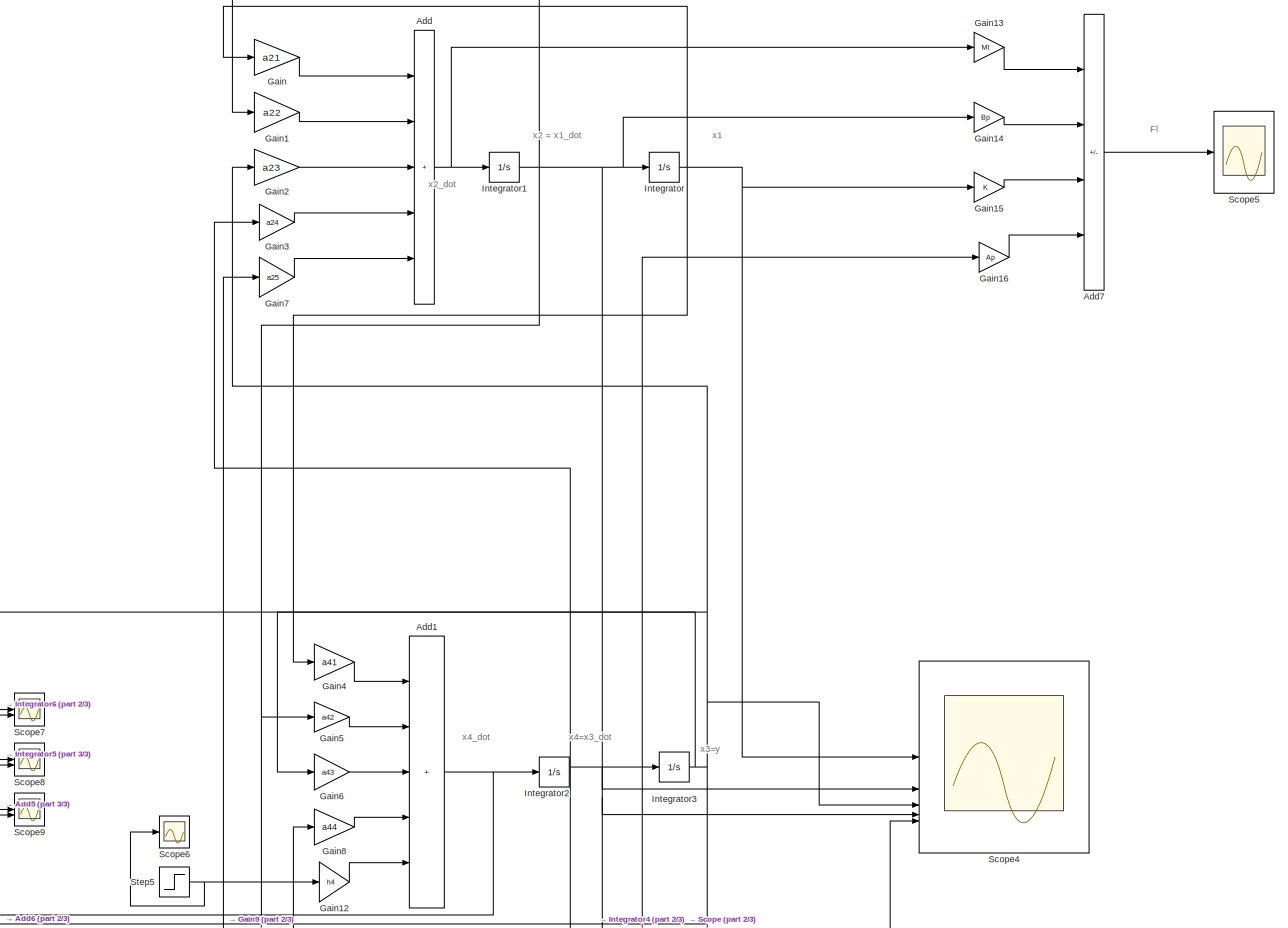
[diagram: root canvas - part 1/3, middle right region]
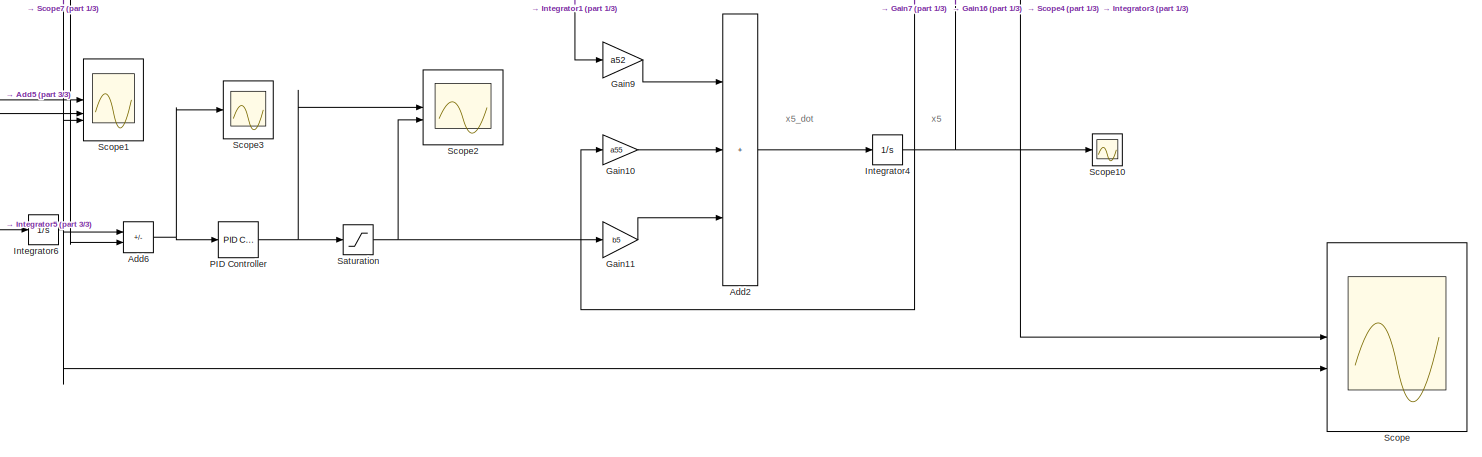
[diagram: root canvas - part 2/3, full width, bottom band]
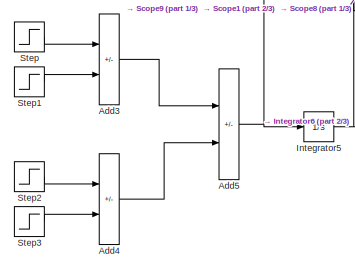
[diagram: root canvas - part 3/3, bottom left region]
MODEL slx_699e497626a1
KIND model
CONFIG AbsTol = auto
CONFIG EnableMultiTasking = off
CONFIG FixedStep = auto
CONFIG MaxStep = auto
CONFIG MinStep = auto
CONFIG RelTol = 1e-3
CONFIG SampleTimeConstraint = Unconstrained
CONFIG SolverName = VariableStepAuto
CONFIG StartTime = 0.0
CONFIG StopTime = 30
BLOCK [Sum] Add
  IconShape = rectangular
  Inputs = +++++
BLOCK [Sum] Add1
  IconShape = rectangular
  Inputs = +++++
BLOCK [Sum] Add2
  IconShape = rectangular
  Inputs = +++
BLOCK [Sum] Add3
  IconShape = rectangular
  Inputs = +-
BLOCK [Sum] Add4
  IconShape = rectangular
  Inputs = +-
BLOCK [Sum] Add5
  IconShape = rectangular
  Inputs = +-
BLOCK [Sum] Add6
  IconShape = rectangular
  Inputs = +-
BLOCK [Sum] Add7
  IconShape = rectangular
  Inputs = ---+
BLOCK [Gain] Gain
  Gain = a21
BLOCK [Gain] Gain1
  Gain = a22
BLOCK [Gain] Gain10
  Gain = a55
BLOCK [Gain] Gain11
  Gain = b5
BLOCK [Gain] Gain12
  Gain = h4
BLOCK [Gain] Gain13
  Gain = Mt
BLOCK [Gain] Gain14
  Gain = Bp
BLOCK [Gain] Gain15
  Gain = K
BLOCK [Gain] Gain16
  Gain = Ap
BLOCK [Gain] Gain2
  Gain = a23
BLOCK [Gain] Gain3
  Gain = a24
BLOCK [Gain] Gain4
  Gain = a41
BLOCK [Gain] Gain5
  Gain = a42
BLOCK [Gain] Gain6
  Gain = a43
BLOCK [Gain] Gain7
  Gain = a25
BLOCK [Gain] Gain8
  Gain = a44
BLOCK [Gain] Gain9
  Gain = a52
BLOCK [Integrator] Integrator
BLOCK [Integrator] Integrator1
BLOCK [Integrator] Integrator2
BLOCK [Integrator] Integrator3
BLOCK [Integrator] Integrator4
BLOCK [Integrator] Integrator5
BLOCK [Integrator] Integrator6
BLOCK [Reference] PID Controller  REF=slpidlib/PID Controller
  LibrarySourceBlock = simulink/Continuous/PID Controller
  SourceBlock = slpidlib/PID Controller
  SourceType = PID 1dof
BLOCK [Saturate] Saturation
  LowerLimit = -24
  UpperLimit = 24
BLOCK [Scope] Scope
  Floating = off
  NumInputPorts = 2
  ScopeSpecificationString = Simulink.scopes.TimeScopeBlockCfg('CurrentConfiguration', extmgr.ConfigurationSet(extmgr.Configuration('Core','General UI',true),extmgr.Configuration('Core','Source UI',true),extmgr.Configuration('Sources','WiredSimulink',true),extmgr.Configuration('Visuals','Time Domain',true,'SerializedDisplays',{struct('MinYLimReal','-0.32762','MaxYLimReal','2.94296','YLabelReal','','MinYLimMag','0.00000','MaxY...<+1567ch>
BLOCK [Scope] Scope1
  Floating = off
  NumInputPorts = 3
  ScopeSpecificationString = Simulink.scopes.TimeScopeBlockCfg('CurrentConfiguration', extmgr.ConfigurationSet(extmgr.Configuration('Core','General UI',true),extmgr.Configuration('Core','Source UI',true),extmgr.Configuration('Sources','WiredSimulink',true,'DataLoggingVariableName','ScopeData1'),extmgr.Configuration('Visuals','Time Domain',true,'SerializedDisplays',{struct('MinYLimReal','-1.96075','MaxYLimReal','1.96075','YLab...<+3020ch>
BLOCK [Scope] Scope10
  Floating = off
  NumInputPorts = 1
  ScopeSpecificationString = Simulink.scopes.TimeScopeBlockCfg('CurrentConfiguration', extmgr.ConfigurationSet(extmgr.Configuration('Core','General UI',true),extmgr.Configuration('Core','Source UI',true),extmgr.Configuration('Sources','WiredSimulink',true,'DataLoggingVariableName','ScopeData6'),extmgr.Configuration('Visuals','Time Domain',true,'SerializedDisplays',{struct('MinYLimReal','-794911.62491','MaxYLimReal','1336433.2...<+1530ch>
BLOCK [Scope] Scope2
  Floating = off
  NumInputPorts = 2
  ScopeSpecificationString = Simulink.scopes.TimeScopeBlockCfg('CurrentConfiguration', extmgr.ConfigurationSet(extmgr.Configuration('Core','General UI',true),extmgr.Configuration('Core','Source UI',true),extmgr.Configuration('Sources','WiredSimulink',true,'DataLoggingVariableName','ScopeData2'),extmgr.Configuration('Visuals','Time Domain',true,'SerializedDisplays',{struct('MinYLimReal','-0.45185','MaxYLimReal','1.54811','YLab...<+1637ch>
BLOCK [Scope] Scope3
  Floating = off
  NumInputPorts = 1
  ScopeSpecificationString = Simulink.scopes.TimeScopeBlockCfg('CurrentConfiguration', extmgr.ConfigurationSet(extmgr.Configuration('Core','General UI',true),extmgr.Configuration('Core','Source UI',true),extmgr.Configuration('Sources','WiredSimulink',true,'DataLoggingVariableName','ScopeData1'),extmgr.Configuration('Visuals','Time Domain',true,'SerializedDisplays',{struct('MinYLimReal','-0.25055','MaxYLimReal','0.30623','YLab...<+1481ch>
BLOCK [Scope] Scope4
  Floating = off
  NumInputPorts = 5
  ScopeSpecificationString = Simulink.scopes.TimeScopeBlockCfg('CurrentConfiguration', extmgr.ConfigurationSet(extmgr.Configuration('Core','General UI',true),extmgr.Configuration('Core','Source UI',true),extmgr.Configuration('Sources','WiredSimulink',true,'DataLoggingVariableName','ScopeData2'),extmgr.Configuration('Visuals','Time Domain',true,'SerializedDisplays',{struct('MinYLimReal','-0.23874','MaxYLimReal','2.14806','YLab...<+5526ch>
BLOCK [Scope] Scope5
  Floating = off
  NumInputPorts = 1
  ScopeSpecificationString = Simulink.scopes.TimeScopeBlockCfg('CurrentConfiguration', extmgr.ConfigurationSet(extmgr.Configuration('Core','General UI',true),extmgr.Configuration('Core','Source UI',true),extmgr.Configuration('Sources','WiredSimulink',true,'DataLoggingVariableName','ScopeData1'),extmgr.Configuration('Visuals','Time Domain',true,'SerializedDisplays',{struct('MinYLimReal','3335.55517','MaxYLimReal','3335.71394',...<+1548ch>
BLOCK [Scope] Scope6
  Floating = off
  NumInputPorts = 1
  ScopeSpecificationString = Simulink.scopes.TimeScopeBlockCfg('CurrentConfiguration', extmgr.ConfigurationSet(extmgr.Configuration('Core','General UI',true),extmgr.Configuration('Core','Source UI',true),extmgr.Configuration('Sources','WiredSimulink',true,'DataLoggingVariableName','ScopeData2'),extmgr.Configuration('Visuals','Time Domain',true,'SerializedDisplays',{struct('MinYLimReal','-62.5','MaxYLimReal','562.5','YLabelRea...<+1458ch>
BLOCK [Scope] Scope7
  Floating = off
  NumInputPorts = 2
  ScopeSpecificationString = Simulink.scopes.TimeScopeBlockCfg('CurrentConfiguration', extmgr.ConfigurationSet(extmgr.Configuration('Core','General UI',true),extmgr.Configuration('Core','Source UI',true),extmgr.Configuration('Sources','WiredSimulink',true,'DataLoggingVariableName','ScopeData3'),extmgr.Configuration('Visuals','Time Domain',true,'SerializedDisplays',{struct('MinYLimReal','-0.23928','MaxYLimReal','2.14791','YLab...<+1502ch>
BLOCK [Scope] Scope8
  Floating = off
  NumInputPorts = 2
  ScopeSpecificationString = Simulink.scopes.TimeScopeBlockCfg('CurrentConfiguration', extmgr.ConfigurationSet(extmgr.Configuration('Core','General UI',true),extmgr.Configuration('Core','Source UI',true),extmgr.Configuration('Sources','WiredSimulink',true,'DataLoggingVariableName','ScopeData4'),extmgr.Configuration('Visuals','Time Domain',true,'SerializedDisplays',{struct('MinYLimReal','-1.93507','MaxYLimReal','1.96777','YLab...<+1521ch>
BLOCK [Scope] Scope9
  Floating = off
  NumInputPorts = 2
  ScopeSpecificationString = Simulink.scopes.TimeScopeBlockCfg('CurrentConfiguration', extmgr.ConfigurationSet(extmgr.Configuration('Core','General UI',true),extmgr.Configuration('Core','Source UI',true),extmgr.Configuration('Sources','WiredSimulink',true,'DataLoggingVariableName','ScopeData5'),extmgr.Configuration('Visuals','Time Domain',true,'SerializedDisplays',{struct('MinYLimReal','-91.48757','MaxYLimReal','90.51738','YL...<+1513ch>
BLOCK [Step] Step
  After = 1.5686
  SampleTime = 0
BLOCK [Step] Step1
  After = 1.5686
  SampleTime = 0
  Time = 1.45
BLOCK [Step] Step2
  After = 1.5686
  SampleTime = 0
  Time = 3.55
BLOCK [Step] Step3
  After = 1.5686
  SampleTime = 0
  Time = 4
BLOCK [Step] Step5
  After = F
  SampleTime = 0
ANNOTATION (root): Fl
ANNOTATION (root): x1
ANNOTATION (root): x2 = x1_dot
ANNOTATION (root): x2_dot
ANNOTATION (root): x3=y
ANNOTATION (root): x4=x3_dot
ANNOTATION (root): x4_dot
ANNOTATION (root): x5
ANNOTATION (root): x5_dot
NET Add1:1 -> Integrator2:1, Scope9:2
LINE Add2:1 -> Integrator4:1
LINE Add3:1 -> Add5:1
LINE Add4:1 -> Add5:2
NET Add5:1 -> Integrator5:1, Scope1:1, Scope9:1
NET Add6:1 -> PID Controller:1, Scope3:1
LINE Add7:1 -> Scope5:1
NET Add:1 -> Gain13:1, Integrator1:1
LINE Gain10:1 -> Add2:2
LINE Gain11:1 -> Add2:3
LINE Gain12:1 -> Add1:5
LINE Gain13:1 -> Add7:1
LINE Gain14:1 -> Add7:2
LINE Gain15:1 -> Add7:3
LINE Gain16:1 -> Add7:4
LINE Gain1:1 -> Add:2
LINE Gain2:1 -> Add:3
LINE Gain3:1 -> Add:4
LINE Gain4:1 -> Add1:1
LINE Gain5:1 -> Add1:2
LINE Gain6:1 -> Add1:3
LINE Gain7:1 -> Add:5
LINE Gain8:1 -> Add1:4
LINE Gain9:1 -> Add2:1
LINE Gain:1 -> Add:1
NET Integrator1:1 -> Gain14:1, Gain1:1, Gain5:1, Gain9:1, Integrator:1, Scope4:2
NET Integrator2:1 -> Gain3:1, Gain8:1, Integrator3:1, Scope4:4, Scope8:2
NET Integrator3:1 -> Add6:2, Gain2:1, Gain6:1, Scope4:3, Scope7:2, Scope:1
NET Integrator4:1 -> Gain10:1, Gain16:1, Gain7:1, Scope10:1, Scope4:5
NET Integrator5:1 -> Integrator6:1, Scope1:2, Scope8:1
NET Integrator6:1 -> Add6:1, Scope1:3, Scope7:1, Scope:2
NET Integrator:1 -> Gain15:1, Gain4:1, Gain:1, Scope4:1
NET PID Controller:1 -> Saturation:1, Scope2:1
NET Saturation:1 -> Gain11:1, Scope2:2
LINE Step1:1 -> Add3:2
LINE Step2:1 -> Add4:1
LINE Step3:1 -> Add4:2
NET Step5:1 -> Gain12:1, Scope6:1
LINE Step:1 -> Add3:1
note: NET lines group one-source signal fan-out (src -> all destinations, sorted); 1:1 wires keep LINE
